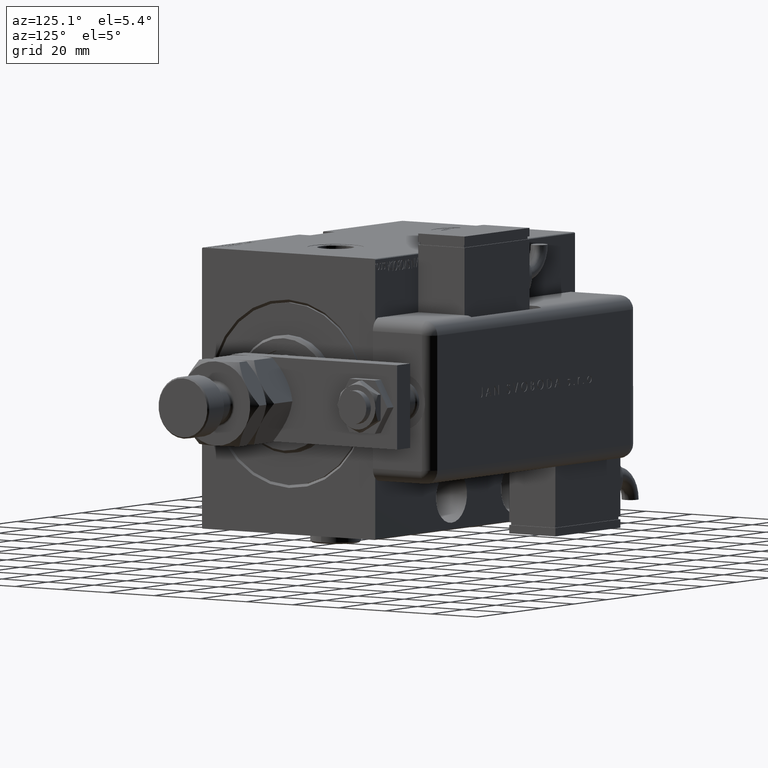
[diagram: clean part render]
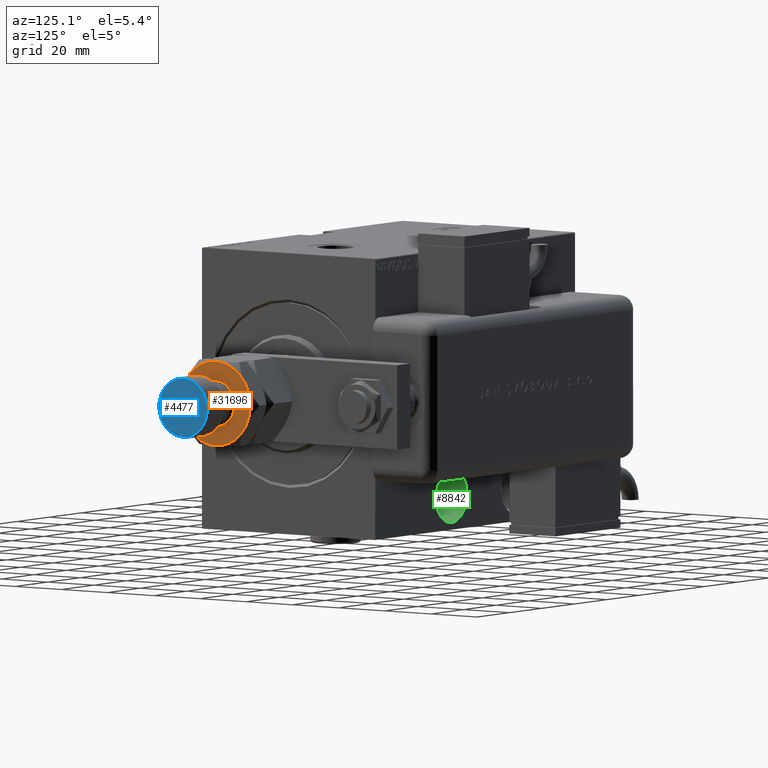
[diagram: same view with three faces highlighted in distinct colors, each labeled with its STEP entity id]
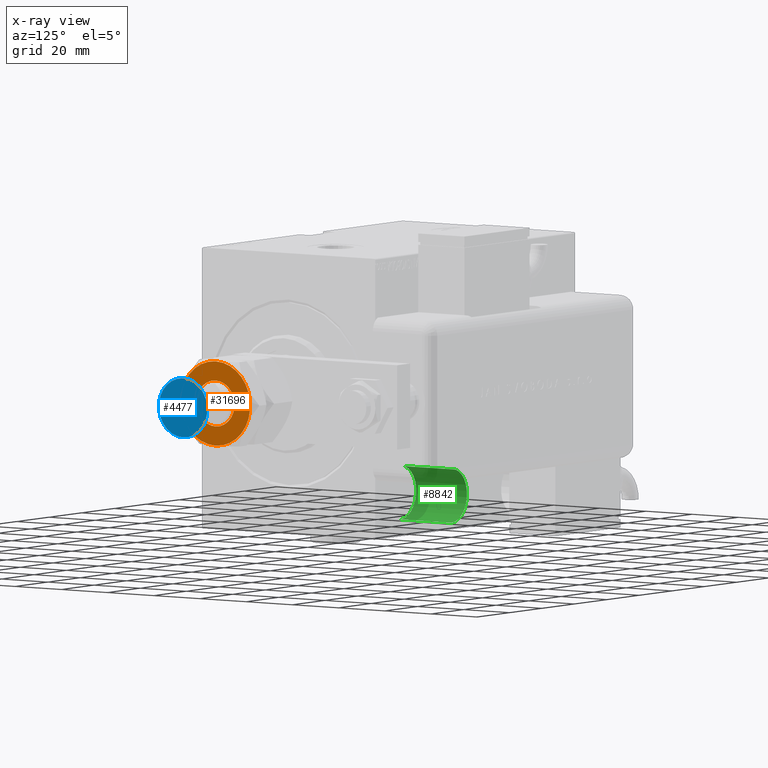
[diagram: x-ray of the same camera — body ghosted, the three highlighted faces saturated]
A machine part, auxiliary view with three faces highlighted in distinct colors.
The next image is the same camera in x-ray (body ghosted, the three faces saturated) — at least one of them is partly hidden behind the body in this view.
Their STEP definitions:

[orange] entity #31696 — the highlighted planar face has unit normal (1, 0, 0).
#2657 = ORIENTED_EDGE ( 'NONE', *, *, #40078, .T. ) ;
#2924 = DIRECTION ( 'NONE',  ( 1.000000000000000000, 0.000000000000000000, 0.000000000000000000 ) ) ;
#3882 = DIRECTION ( 'NONE',  ( 1.000000000000000000, 0.000000000000000000, 0.000000000000000000 ) ) ;
#3977 = ORIENTED_EDGE ( 'NONE', *, *, #18241, .T. ) ;
#4108 = AXIS2_PLACEMENT_3D ( 'NONE', #20668, #15357, #39109 ) ;
#4684 = EDGE_CURVE ( 'NONE', #59632, #49998, #34917, .T. ) ;
#5133 = VERTEX_POINT ( 'NONE', #5611 ) ;
#5611 = CARTESIAN_POINT ( 'NONE',  ( 8.200000000000001066, 0.000000000000000000, 25.00000000000000000 ) ) ;
#6767 = CARTESIAN_POINT ( 'NONE',  ( -7.500000000000000888, -12.99038105676657828, 25.00000000000000000 ) ) ;
#9021 = ORIENTED_EDGE ( 'NONE', *, *, #33853, .T. ) ;
#9584 = FACE_BOUND ( 'NONE', #21050, .T. ) ;
#9943 = AXIS2_PLACEMENT_3D ( 'NONE', #13851, #18554, #47598 ) ;
#9989 = CARTESIAN_POINT ( 'NONE',  ( 0.000000000000000000, 0.000000000000000000, 25.00000000000000000 ) ) ;
#10254 = VERTEX_POINT ( 'NONE', #15830 ) ;
#10597 = AXIS2_PLACEMENT_3D ( 'NONE', #46415, #22674, #3882 ) ;
#12230 = CARTESIAN_POINT ( 'NONE',  ( -8.200000000000001066, 1.004210375300829674E-15, 25.00000000000000000 ) ) ;
#13628 = DIRECTION ( 'NONE',  ( 0.000000000000000000, -0.000000000000000000, 1.000000000000000000 ) ) ;
#13851 = CARTESIAN_POINT ( 'NONE',  ( 0.000000000000000000, 0.000000000000000000, 25.00000000000000000 ) ) ;
#14573 = DIRECTION ( 'NONE',  ( 1.000000000000000000, 0.000000000000000000, 0.000000000000000000 ) ) ;
#14887 = CARTESIAN_POINT ( 'NONE',  ( 0.000000000000000000, 0.000000000000000000, 25.00000000000000000 ) ) ;
#15357 = DIRECTION ( 'NONE',  ( -0.000000000000000000, 0.000000000000000000, -1.000000000000000000 ) ) ;
#15830 = CARTESIAN_POINT ( 'NONE',  ( 14.99999999999999645, 1.502314598737159426E-15, 25.00000000000000000 ) ) ;
#16280 = CARTESIAN_POINT ( 'NONE',  ( -7.500000000000000000, 12.99038105676657651, 25.00000000000000000 ) ) ;
#16980 = VERTEX_POINT ( 'NONE', #50241 ) ;
#17657 = DIRECTION ( 'NONE',  ( 0.000000000000000000, -0.000000000000000000, 1.000000000000000000 ) ) ;
#18241 = EDGE_CURVE ( 'NONE', #27767, #59632, #45338, .T. ) ;
#18554 = DIRECTION ( 'NONE',  ( 0.000000000000000000, -0.000000000000000000, 1.000000000000000000 ) ) ;
#18583 = ORIENTED_EDGE ( 'NONE', *, *, #25701, .T. ) ;
#19401 = CIRCLE ( 'NONE', #45376, 8.200000000000001066 ) ;
#20668 = CARTESIAN_POINT ( 'NONE',  ( 0.000000000000000000, 0.000000000000000000, 25.00000000000000000 ) ) ;
#21050 = EDGE_LOOP ( 'NONE', ( #21279, #33572 ) ) ;
#21279 = ORIENTED_EDGE ( 'NONE', *, *, #53282, .T. ) ;
#22674 = DIRECTION ( 'NONE',  ( 0.000000000000000000, 0.000000000000000000, 1.000000000000000000 ) ) ;
#22721 = CARTESIAN_POINT ( 'NONE',  ( 0.000000000000000000, 0.000000000000000000, 25.00000000000000000 ) ) ;
#24883 = DIRECTION ( 'NONE',  ( 0.000000000000000000, -0.000000000000000000, 1.000000000000000000 ) ) ;
#25195 = EDGE_LOOP ( 'NONE', ( #9021, #42641, #18583, #2657, #3977, #27108 ) ) ;
#25391 = AXIS2_PLACEMENT_3D ( 'NONE', #61173, #55864, #42416 ) ;
#25701 = EDGE_CURVE ( 'NONE', #16980, #45740, #43588, .T. ) ;
#26242 = DIRECTION ( 'NONE',  ( 1.000000000000000000, 0.000000000000000000, 0.000000000000000000 ) ) ;
#27108 = ORIENTED_EDGE ( 'NONE', *, *, #4684, .T. ) ;
#27764 = EDGE_CURVE ( 'NONE', #10254, #16980, #35560, .T. ) ;
#27767 = VERTEX_POINT ( 'NONE', #42017 ) ;
#27943 = CARTESIAN_POINT ( 'NONE',  ( 0.000000000000000000, 0.000000000000000000, 25.00000000000000000 ) ) ;
#28460 = CIRCLE ( 'NONE', #55401, 14.99999999999999645 ) ;
#28668 = FACE_OUTER_BOUND ( 'NONE', #25195, .T. ) ;
#29072 = DIRECTION ( 'NONE',  ( 0.000000000000000000, -0.000000000000000000, 1.000000000000000000 ) ) ;
#31289 = CARTESIAN_POINT ( 'NONE',  ( 7.500000000000001776, -12.99038105676657473, 25.00000000000000000 ) ) ;
#31341 = AXIS2_PLACEMENT_3D ( 'NONE', #22721, #13628, #41762 ) ;
#31401 = CARTESIAN_POINT ( 'NONE',  ( 0.000000000000000000, 0.000000000000000000, 25.00000000000000000 ) ) ;
#31696 = ADVANCED_FACE ( 'NONE', ( #9584, #28668 ), #47722, .T. ) ;
#32630 = AXIS2_PLACEMENT_3D ( 'NONE', #27943, #17657, #50762 ) ;
#33196 = EDGE_CURVE ( 'NONE', #33537, #5133, #19401, .T. ) ;
#33537 = VERTEX_POINT ( 'NONE', #12230 ) ;
#33572 = ORIENTED_EDGE ( 'NONE', *, *, #33196, .T. ) ;
#33853 = EDGE_CURVE ( 'NONE', #49998, #10254, #28460, .T. ) ;
#34917 = CIRCLE ( 'NONE', #9943, 14.99999999999999645 ) ;
#35057 = CIRCLE ( 'NONE', #4108, 8.200000000000001066 ) ;
#35560 = CIRCLE ( 'NONE', #10597, 14.99999999999999645 ) ;
#39109 = DIRECTION ( 'NONE',  ( 1.000000000000000000, 0.000000000000000000, 0.000000000000000000 ) ) ;
#40078 = EDGE_CURVE ( 'NONE', #45740, #27767, #53600, .T. ) ;
#41762 = DIRECTION ( 'NONE',  ( 1.000000000000000000, 0.000000000000000000, 0.000000000000000000 ) ) ;
#42017 = CARTESIAN_POINT ( 'NONE',  ( -14.99999999999999645, 0.000000000000000000, 25.00000000000000000 ) ) ;
#42416 = DIRECTION ( 'NONE',  ( 1.000000000000000000, 0.000000000000000000, -0.000000000000000000 ) ) ;
#42641 = ORIENTED_EDGE ( 'NONE', *, *, #27764, .T. ) ;
#43588 = CIRCLE ( 'NONE', #32630, 14.99999999999999645 ) ;
#45338 = CIRCLE ( 'NONE', #31341, 14.99999999999999645 ) ;
#45376 = AXIS2_PLACEMENT_3D ( 'NONE', #31401, #45754, #2924 ) ;
#45740 = VERTEX_POINT ( 'NONE', #16280 ) ;
#45754 = DIRECTION ( 'NONE',  ( -0.000000000000000000, 0.000000000000000000, -1.000000000000000000 ) ) ;
#46415 = CARTESIAN_POINT ( 'NONE',  ( 0.000000000000000000, 0.000000000000000000, 25.00000000000000000 ) ) ;
#47598 = DIRECTION ( 'NONE',  ( 1.000000000000000000, 0.000000000000000000, 0.000000000000000000 ) ) ;
#47722 = PLANE ( 'NONE',  #25391 ) ;
#49998 = VERTEX_POINT ( 'NONE', #31289 ) ;
#50241 = CARTESIAN_POINT ( 'NONE',  ( 7.499999999999998224, 12.99038105676657651, 25.00000000000000000 ) ) ;
#50762 = DIRECTION ( 'NONE',  ( 1.000000000000000000, 0.000000000000000000, 0.000000000000000000 ) ) ;
#53282 = EDGE_CURVE ( 'NONE', #5133, #33537, #35057, .T. ) ;
#53600 = CIRCLE ( 'NONE', #60620, 14.99999999999999645 ) ;
#55401 = AXIS2_PLACEMENT_3D ( 'NONE', #9989, #29072, #26242 ) ;
#55864 = DIRECTION ( 'NONE',  ( 0.000000000000000000, -0.000000000000000000, 1.000000000000000000 ) ) ;
#59632 = VERTEX_POINT ( 'NONE', #6767 ) ;
#60620 = AXIS2_PLACEMENT_3D ( 'NONE', #14887, #24883, #14573 ) ;
#61173 = CARTESIAN_POINT ( 'NONE',  ( 0.000000000000000000, 0.000000000000000000, 25.00000000000000000 ) ) ;

[blue] entity #4477 — the highlighted planar face has unit normal (1, 0, 0).
#4407 = AXIS2_PLACEMENT_3D ( 'NONE', #60928, #23427, #8102 ) ;
#4477 = ADVANCED_FACE ( 'NONE', ( #51044 ), #40144, .T. ) ;
#8102 = DIRECTION ( 'NONE',  ( 1.000000000000000000, 0.000000000000000000, 0.000000000000000000 ) ) ;
#21379 = CARTESIAN_POINT ( 'NONE',  ( 0.000000000000000000, 0.000000000000000000, 45.00000000000000711 ) ) ;
#21713 = DIRECTION ( 'NONE',  ( 1.000000000000000000, 0.000000000000000000, -0.000000000000000000 ) ) ;
#21866 = VERTEX_POINT ( 'NONE', #40706 ) ;
#23427 = DIRECTION ( 'NONE',  ( 0.000000000000000000, 0.000000000000000000, 1.000000000000000000 ) ) ;
#23678 = EDGE_CURVE ( 'NONE', #46475, #21866, #56477, .T. ) ;
#24488 = ORIENTED_EDGE ( 'NONE', *, *, #61334, .T. ) ;
#29544 = AXIS2_PLACEMENT_3D ( 'NONE', #21379, #36372, #60728 ) ;
#36372 = DIRECTION ( 'NONE',  ( 0.000000000000000000, 0.000000000000000000, 1.000000000000000000 ) ) ;
#40144 = PLANE ( 'NONE',  #40887 ) ;
#40706 = CARTESIAN_POINT ( 'NONE',  ( 10.50000000000000178, 1.316495309083404815E-15, 45.00000000000000711 ) ) ;
#40887 = AXIS2_PLACEMENT_3D ( 'NONE', #45456, #54818, #21713 ) ;
#45456 = CARTESIAN_POINT ( 'NONE',  ( 0.000000000000000000, 0.000000000000000000, 45.00000000000000711 ) ) ;
#46313 = CIRCLE ( 'NONE', #4407, 10.50000000000000178 ) ;
#46475 = VERTEX_POINT ( 'NONE', #51700 ) ;
#49073 = ORIENTED_EDGE ( 'NONE', *, *, #23678, .T. ) ;
#51044 = FACE_OUTER_BOUND ( 'NONE', #60816, .T. ) ;
#51700 = CARTESIAN_POINT ( 'NONE',  ( -10.50000000000000178, 0.000000000000000000, 45.00000000000000711 ) ) ;
#54818 = DIRECTION ( 'NONE',  ( 0.000000000000000000, 0.000000000000000000, 1.000000000000000000 ) ) ;
#56477 = CIRCLE ( 'NONE', #29544, 10.50000000000000178 ) ;
#60728 = DIRECTION ( 'NONE',  ( 1.000000000000000000, 0.000000000000000000, 0.000000000000000000 ) ) ;
#60816 = EDGE_LOOP ( 'NONE', ( #49073, #24488 ) ) ;
#60928 = CARTESIAN_POINT ( 'NONE',  ( 0.000000000000000000, 0.000000000000000000, 45.00000000000000711 ) ) ;
#61334 = EDGE_CURVE ( 'NONE', #21866, #46475, #46313, .T. ) ;

[green] entity #8842 — the highlighted cylindrical surface (edge-blend (fillet) strip) has radius 9.5 mm, axis along (0, 1, -0).
#534 = DIRECTION ( 'NONE',  ( 0.000000000000000000, 0.000000000000000000, -1.000000000000000000 ) ) ;
#588 = EDGE_LOOP ( 'NONE', ( #29258, #23244, #24892, #22661 ) ) ;
#829 = CARTESIAN_POINT ( 'NONE',  ( 47.00000000000000711, -15.50000000000000000, -47.50000000000000711 ) ) ;
#8842 = ADVANCED_FACE ( 'NONE', ( #61814 ), #43963, .F. ) ;
#9067 = VERTEX_POINT ( 'NONE', #12962 ) ;
#11598 = VECTOR ( 'NONE', #14607, 1000.000000000000000 ) ;
#12962 = CARTESIAN_POINT ( 'NONE',  ( 47.00000000000000711, -37.50000000000000000, -28.50000000000000355 ) ) ;
#14607 = DIRECTION ( 'NONE',  ( -0.000000000000000000, -1.000000000000000000, -0.000000000000000000 ) ) ;
#14800 = AXIS2_PLACEMENT_3D ( 'NONE', #21886, #21582, #16890 ) ;
#15389 = VECTOR ( 'NONE', #19862, 1000.000000000000000 ) ;
#15480 = CARTESIAN_POINT ( 'NONE',  ( 47.00000000000000711, -15.50000000000000000, -28.50000000000000355 ) ) ;
#16890 = DIRECTION ( 'NONE',  ( 0.000000000000000000, 0.000000000000000000, -1.000000000000000000 ) ) ;
#17548 = AXIS2_PLACEMENT_3D ( 'NONE', #35829, #41130, #60189 ) ;
#18383 = VERTEX_POINT ( 'NONE', #15480 ) ;
#19003 = CARTESIAN_POINT ( 'NONE',  ( 47.00000000000000711, -15.50000000000000000, -38.00000000000000711 ) ) ;
#19105 = AXIS2_PLACEMENT_3D ( 'NONE', #19003, #53649, #534 ) ;
#19612 = LINE ( 'NONE', #829, #11598 ) ;
#19862 = DIRECTION ( 'NONE',  ( -0.000000000000000000, -1.000000000000000000, -0.000000000000000000 ) ) ;
#20820 = CARTESIAN_POINT ( 'NONE',  ( 47.00000000000000711, -37.50000000000000000, -47.50000000000000711 ) ) ;
#21582 = DIRECTION ( 'NONE',  ( 0.000000000000000000, -1.000000000000000000, 0.000000000000000000 ) ) ;
#21886 = CARTESIAN_POINT ( 'NONE',  ( 47.00000000000000711, -37.50000000000000000, -38.00000000000000711 ) ) ;
#22661 = ORIENTED_EDGE ( 'NONE', *, *, #44900, .T. ) ;
#23244 = ORIENTED_EDGE ( 'NONE', *, *, #34977, .F. ) ;
#24255 = CARTESIAN_POINT ( 'NONE',  ( 47.00000000000000711, -15.50000000000000000, -28.50000000000000355 ) ) ;
#24302 = EDGE_CURVE ( 'NONE', #30682, #50266, #19612, .T. ) ;
#24892 = ORIENTED_EDGE ( 'NONE', *, *, #24302, .T. ) ;
#28384 = EDGE_CURVE ( 'NONE', #18383, #9067, #42994, .T. ) ;
#29258 = ORIENTED_EDGE ( 'NONE', *, *, #28384, .F. ) ;
#30682 = VERTEX_POINT ( 'NONE', #38973 ) ;
#34977 = EDGE_CURVE ( 'NONE', #30682, #18383, #49459, .T. ) ;
#35829 = CARTESIAN_POINT ( 'NONE',  ( 47.00000000000000711, -15.50000000000000000, -38.00000000000000711 ) ) ;
#38973 = CARTESIAN_POINT ( 'NONE',  ( 47.00000000000000711, -15.50000000000000000, -47.50000000000000711 ) ) ;
#41130 = DIRECTION ( 'NONE',  ( 0.000000000000000000, -1.000000000000000000, 0.000000000000000000 ) ) ;
#42994 = LINE ( 'NONE', #24255, #15389 ) ;
#43963 = CYLINDRICAL_SURFACE ( 'NONE', #19105, 9.500000000000001776 ) ;
#44874 = CIRCLE ( 'NONE', #14800, 9.500000000000001776 ) ;
#44900 = EDGE_CURVE ( 'NONE', #50266, #9067, #44874, .T. ) ;
#49459 = CIRCLE ( 'NONE', #17548, 9.500000000000001776 ) ;
#50266 = VERTEX_POINT ( 'NONE', #20820 ) ;
#53649 = DIRECTION ( 'NONE',  ( -0.000000000000000000, -1.000000000000000000, -0.000000000000000000 ) ) ;
#60189 = DIRECTION ( 'NONE',  ( 0.000000000000000000, 0.000000000000000000, -1.000000000000000000 ) ) ;
#61814 = FACE_OUTER_BOUND ( 'NONE', #588, .T. ) ;